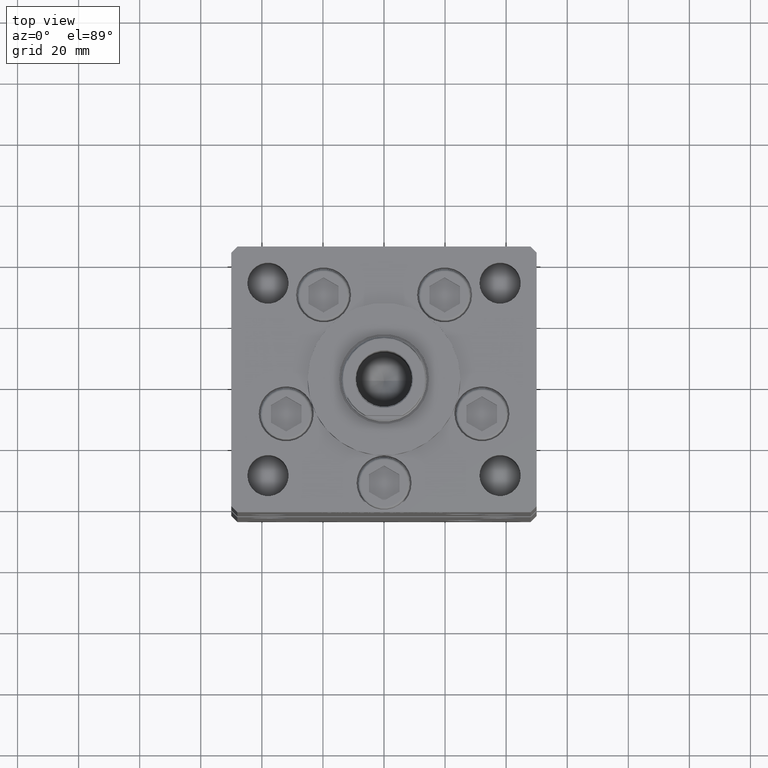
[diagram: clean part render]
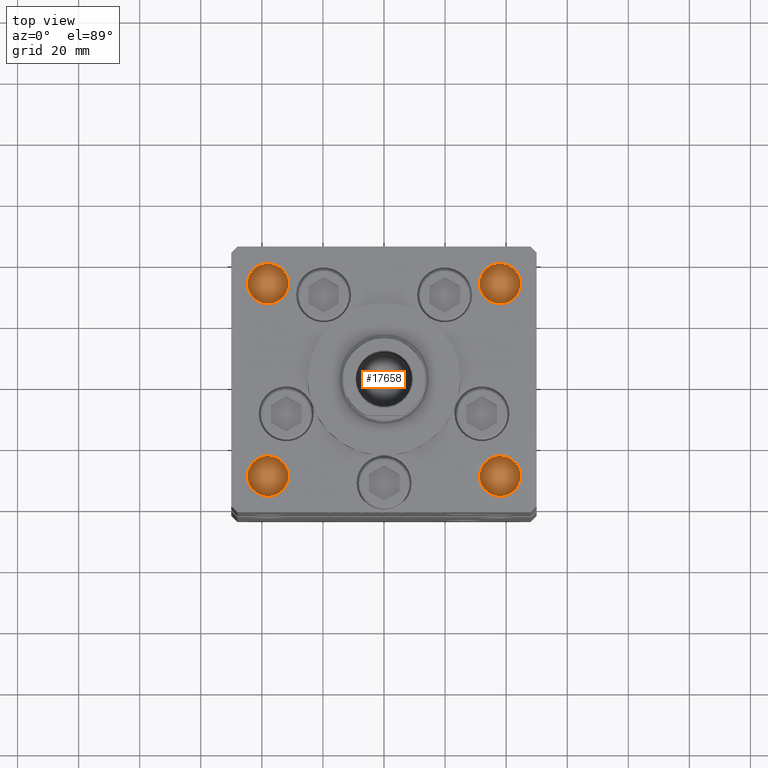
[diagram: same view with one face highlighted and labeled with its STEP entity id]
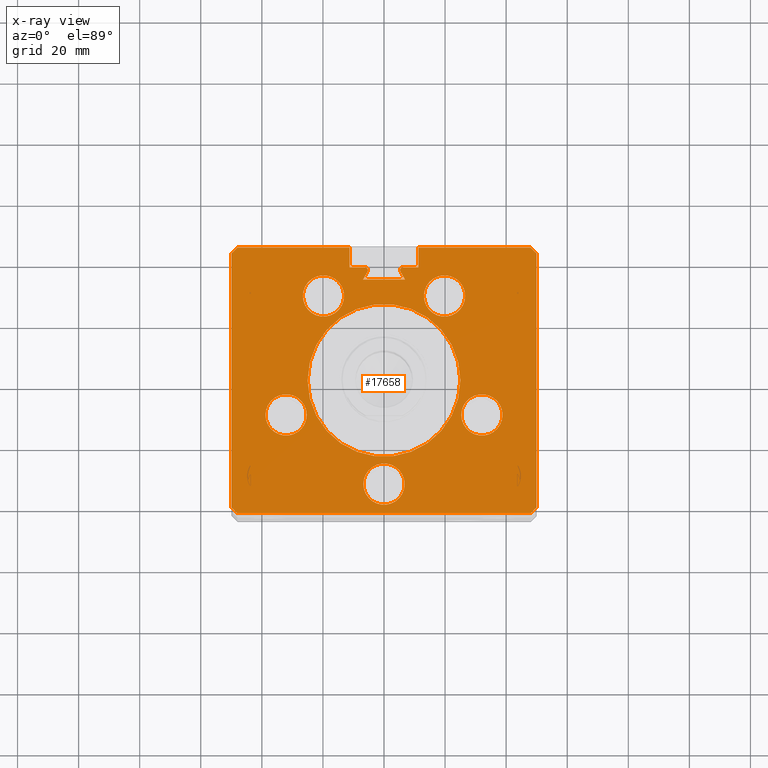
[diagram: x-ray of the same camera — body ghosted, the highlighted face saturated]
A machine part, top view. The second image highlights one B-rep face of the part: STEP entity #17658.
The next image is the same camera in x-ray: the body ghosted, the highlighted face saturated — about 0% of this face is hidden behind the body in this view.
In plain terms, the highlighted planar face has unit normal (0, 0, -1).
Its self-contained STEP definition (entity closure, byte-faithful):
#13 = EDGE_CURVE ( 'NONE', #19755, #31861, #48676, .T. ) ;
#379 = EDGE_CURVE ( 'NONE', #48150, #17467, #24813, .T. ) ;
#549 = VERTEX_POINT ( 'NONE', #16878 ) ;
#564 = CARTESIAN_POINT ( 'NONE',  ( 6.876153656360465050, 32.99999999999986500, 148.5000000000000000 ) ) ;
#1143 = CARTESIAN_POINT ( 'NONE',  ( 0.000000000000000000, 0.000000000000000000, 148.5000000000000000 ) ) ;
#1181 = FACE_BOUND ( 'NONE', #9971, .T. ) ;
#1240 = AXIS2_PLACEMENT_3D ( 'NONE', #34955, #18291, #34688 ) ;
#1286 = AXIS2_PLACEMENT_3D ( 'NONE', #5603, #26543, #21978 ) ;
#1352 = CARTESIAN_POINT ( 'NONE',  ( 6.750000000000000888, -34.00000000000000000, 148.5000000000000000 ) ) ;
#1665 = LINE ( 'NONE', #18043, #3215 ) ;
#1792 = EDGE_CURVE ( 'NONE', #20033, #45003, #36056, .T. ) ;
#2208 = CARTESIAN_POINT ( 'NONE',  ( 19.82068048781374259, 27.62500000000000000, 148.5000000000000000 ) ) ;
#2551 = DIRECTION ( 'NONE',  ( 0.7071067811865487940, -0.7071067811865463515, 0.000000000000000000 ) ) ;
#2599 = CARTESIAN_POINT ( 'NONE',  ( 26.57068048781373903, 27.62500000000000000, 148.5000000000000000 ) ) ;
#2622 = CARTESIAN_POINT ( 'NONE',  ( 38.80550741379015278, -11.33333333333334103, 148.5000000000000000 ) ) ;
#2671 = CARTESIAN_POINT ( 'NONE',  ( 49.99999999999998579, -41.49999999999999289, 148.5000000000000000 ) ) ;
#2698 = VECTOR ( 'NONE', #34279, 1000.000000000000000 ) ;
#3131 = ORIENTED_EDGE ( 'NONE', *, *, #23183, .F. ) ;
#3155 = CIRCLE ( 'NONE', #17755, 6.749999999999999112 ) ;
#3205 = CARTESIAN_POINT ( 'NONE',  ( 25.00000000000000000, 3.061616997868383043E-15, 148.5000000000000000 ) ) ;
#3207 = DIRECTION ( 'NONE',  ( 0.000000000000000000, 1.000000000000000000, 0.000000000000000000 ) ) ;
#3215 = VECTOR ( 'NONE', #30926, 1000.000000000000000 ) ;
#3225 = CARTESIAN_POINT ( 'NONE',  ( -11.24999999999999645, 43.50000000000000000, 148.5000000000000000 ) ) ;
#3355 = AXIS2_PLACEMENT_3D ( 'NONE', #19582, #28975, #23870 ) ;
#3464 = VERTEX_POINT ( 'NONE', #19153 ) ;
#3538 = CIRCLE ( 'NONE', #14700, 6.749999999999999112 ) ;
#3786 = CARTESIAN_POINT ( 'NONE',  ( -47.99999999999998579, -43.50000000000000000, 148.5000000000000000 ) ) ;
#4006 = LINE ( 'NONE', #3225, #37190 ) ;
#4019 = ORIENTED_EDGE ( 'NONE', *, *, #45703, .F. ) ;
#4053 = DIRECTION ( 'NONE',  ( 1.000000000000000000, 0.000000000000000000, 0.000000000000000000 ) ) ;
#4066 = AXIS2_PLACEMENT_3D ( 'NONE', #53190, #4545, #49695 ) ;
#4545 = DIRECTION ( 'NONE',  ( 0.000000000000000000, 0.000000000000000000, 1.000000000000000000 ) ) ;
#4675 = FACE_BOUND ( 'NONE', #16872, .T. ) ;
#4710 = ORIENTED_EDGE ( 'NONE', *, *, #17100, .F. ) ;
#4788 = VECTOR ( 'NONE', #52429, 1000.000000000000000 ) ;
#5015 = CIRCLE ( 'NONE', #41054, 6.749999999999999112 ) ;
#5182 = CARTESIAN_POINT ( 'NONE',  ( 19.82068048781374259, 27.62500000000000000, 148.5000000000000000 ) ) ;
#5419 = ORIENTED_EDGE ( 'NONE', *, *, #1792, .T. ) ;
#5422 = CARTESIAN_POINT ( 'NONE',  ( -49.99999999999998579, -41.49999999999999289, 148.5000000000000000 ) ) ;
#5567 = VERTEX_POINT ( 'NONE', #40202 ) ;
#5603 = CARTESIAN_POINT ( 'NONE',  ( 0.000000000000000000, 0.000000000000000000, 148.5000000000000000 ) ) ;
#6460 = VERTEX_POINT ( 'NONE', #52588 ) ;
#6565 = VERTEX_POINT ( 'NONE', #45848 ) ;
#6754 = EDGE_CURVE ( 'NONE', #3464, #47217, #22954, .T. ) ;
#6936 = CARTESIAN_POINT ( 'NONE',  ( -25.00000000000000000, 0.000000000000000000, 148.5000000000000000 ) ) ;
#6972 = EDGE_CURVE ( 'NONE', #17467, #48150, #3538, .T. ) ;
#7032 = CARTESIAN_POINT ( 'NONE',  ( -19.82068048781374259, 27.62499999999999645, 148.5000000000000000 ) ) ;
#7144 = VERTEX_POINT ( 'NONE', #2622 ) ;
#7341 = CARTESIAN_POINT ( 'NONE',  ( 11.24999999999999645, 0.000000000000000000, 148.5000000000000000 ) ) ;
#7354 = EDGE_CURVE ( 'NONE', #40556, #19235, #9295, .T. ) ;
#7789 = CARTESIAN_POINT ( 'NONE',  ( -19.44653440471351757, 11.22746187336663404, 148.5000000000000000 ) ) ;
#7859 = DIRECTION ( 'NONE',  ( 0.000000000000000000, 0.000000000000000000, 1.000000000000000000 ) ) ;
#7958 = DIRECTION ( 'NONE',  ( 0.000000000000000000, 0.000000000000000000, -1.000000000000000000 ) ) ;
#8057 = VERTEX_POINT ( 'NONE', #29194 ) ;
#8100 = DIRECTION ( 'NONE',  ( 1.000000000000000000, 0.000000000000000000, 0.000000000000000000 ) ) ;
#8191 = CIRCLE ( 'NONE', #38238, 0.9333333333339999260 ) ;
#8730 = EDGE_LOOP ( 'NONE', ( #9802, #27153 ) ) ;
#8996 = CARTESIAN_POINT ( 'NONE',  ( -6.749999999999997335, -34.00000000000000000, 148.5000000000000000 ) ) ;
#9295 = LINE ( 'NONE', #26220, #2698 ) ;
#9400 = ORIENTED_EDGE ( 'NONE', *, *, #35258, .F. ) ;
#9480 = DIRECTION ( 'NONE',  ( 0.000000000000000000, 0.000000000000000000, 1.000000000000000000 ) ) ;
#9718 = DIRECTION ( 'NONE',  ( 1.000000000000000000, 0.000000000000000000, 0.000000000000000000 ) ) ;
#9758 = FACE_BOUND ( 'NONE', #50139, .T. ) ;
#9802 = ORIENTED_EDGE ( 'NONE', *, *, #6972, .F. ) ;
#9971 = EDGE_LOOP ( 'NONE', ( #12346, #50369 ) ) ;
#10049 = VERTEX_POINT ( 'NONE', #41885 ) ;
#10257 = DIRECTION ( 'NONE',  ( 1.000000000000000000, 0.000000000000000000, 0.000000000000000000 ) ) ;
#10796 = CARTESIAN_POINT ( 'NONE',  ( -11.24999999999999645, 43.50000000000000000, 148.5000000000000000 ) ) ;
#10985 = LINE ( 'NONE', #44045, #36574 ) ;
#11181 = CARTESIAN_POINT ( 'NONE',  ( 49.99999999999998579, -41.49999999999999289, 148.5000000000000000 ) ) ;
#11465 = ORIENTED_EDGE ( 'NONE', *, *, #32500, .T. ) ;
#11626 = VERTEX_POINT ( 'NONE', #47401 ) ;
#11658 = VECTOR ( 'NONE', #27849, 1000.000000000000114 ) ;
#12208 = ORIENTED_EDGE ( 'NONE', *, *, #33598, .F. ) ;
#12300 = AXIS2_PLACEMENT_3D ( 'NONE', #50625, #34217, #46334 ) ;
#12346 = ORIENTED_EDGE ( 'NONE', *, *, #52234, .F. ) ;
#12399 = CARTESIAN_POINT ( 'NONE',  ( 2.081899558550500280E-15, -34.00000000000000000, 148.5000000000000000 ) ) ;
#12763 = CARTESIAN_POINT ( 'NONE',  ( -5.249999999999995559, 36.06666666666599497, 148.5000000000000000 ) ) ;
#13226 = CARTESIAN_POINT ( 'NONE',  ( -49.99999999999998579, -41.49999999999999289, 148.5000000000000000 ) ) ;
#13257 = AXIS2_PLACEMENT_3D ( 'NONE', #49167, #32761, #31973 ) ;
#13873 = EDGE_CURVE ( 'NONE', #34713, #6565, #23648, .T. ) ;
#14093 = ORIENTED_EDGE ( 'NONE', *, *, #36310, .F. ) ;
#14104 = CIRCLE ( 'NONE', #13257, 0.9333333333339999260 ) ;
#14344 = VERTEX_POINT ( 'NONE', #2599 ) ;
#14700 = AXIS2_PLACEMENT_3D ( 'NONE', #7032, #30961, #39817 ) ;
#15207 = ORIENTED_EDGE ( 'NONE', *, *, #24961, .F. ) ;
#15700 = VERTEX_POINT ( 'NONE', #20035 ) ;
#15891 = DIRECTION ( 'NONE',  ( 0.4999999999999987788, -0.8660254037844392627, 0.000000000000000000 ) ) ;
#15971 = VECTOR ( 'NONE', #21797, 1000.000000000000114 ) ;
#16129 = CARTESIAN_POINT ( 'NONE',  ( 5.375042956467946276, 35.59999999999899245, 148.5000000000000000 ) ) ;
#16383 = LINE ( 'NONE', #32775, #4788 ) ;
#16489 = VECTOR ( 'NONE', #48658, 1000.000000000000114 ) ;
#16840 = CARTESIAN_POINT ( 'NONE',  ( -11.24999999999999645, 37.00000000000000000, 148.5000000000000000 ) ) ;
#16872 = EDGE_LOOP ( 'NONE', ( #49000, #34590 ) ) ;
#16878 = CARTESIAN_POINT ( 'NONE',  ( 25.30550741379015278, -11.33333333333334103, 148.5000000000000000 ) ) ;
#17034 = FACE_BOUND ( 'NONE', #24167, .T. ) ;
#17100 = EDGE_CURVE ( 'NONE', #6460, #3464, #40083, .T. ) ;
#17467 = VERTEX_POINT ( 'NONE', #40671 ) ;
#17597 = ORIENTED_EDGE ( 'NONE', *, *, #45101, .F. ) ;
#17658 = ADVANCED_FACE ( 'NONE', ( #1181, #17034, #4675, #46595, #49562, #21324, #9758 ), #26158, .F. ) ;
#17755 = AXIS2_PLACEMENT_3D ( 'NONE', #47462, #40177, #51752 ) ;
#18043 = CARTESIAN_POINT ( 'NONE',  ( 0.000000000000000000, 32.99999999999986500, 148.5000000000000000 ) ) ;
#18291 = DIRECTION ( 'NONE',  ( 0.000000000000000000, 0.000000000000000000, 1.000000000000000000 ) ) ;
#18306 = ORIENTED_EDGE ( 'NONE', *, *, #25142, .T. ) ;
#18611 = CARTESIAN_POINT ( 'NONE',  ( -38.80550741379015278, -11.33333333333334458, 148.5000000000000000 ) ) ;
#18689 = CARTESIAN_POINT ( 'NONE',  ( -6.876153656360465050, 32.99999999999986500, 148.5000000000000000 ) ) ;
#19153 = CARTESIAN_POINT ( 'NONE',  ( 48.00000000000000711, 43.50000000000000000, 148.5000000000000000 ) ) ;
#19235 = VERTEX_POINT ( 'NONE', #16840 ) ;
#19434 = AXIS2_PLACEMENT_3D ( 'NONE', #1143, #26119, #9718 ) ;
#19582 = CARTESIAN_POINT ( 'NONE',  ( -19.82068048781374259, 27.62499999999999645, 148.5000000000000000 ) ) ;
#19603 = AXIS2_PLACEMENT_3D ( 'NONE', #42265, #9480, #29908 ) ;
#19627 = ORIENTED_EDGE ( 'NONE', *, *, #47772, .T. ) ;
#19698 = CARTESIAN_POINT ( 'NONE',  ( -32.05550741379015278, -11.33333333333334458, 148.5000000000000000 ) ) ;
#19755 = VERTEX_POINT ( 'NONE', #47267 ) ;
#20033 = VERTEX_POINT ( 'NONE', #16129 ) ;
#20035 = CARTESIAN_POINT ( 'NONE',  ( -11.24999999999999645, 43.50000000000000000, 148.5000000000000000 ) ) ;
#20415 = ORIENTED_EDGE ( 'NONE', *, *, #6754, .F. ) ;
#20557 = VECTOR ( 'NONE', #15891, 1000.000000000000114 ) ;
#20812 = ORIENTED_EDGE ( 'NONE', *, *, #22086, .F. ) ;
#21235 = VECTOR ( 'NONE', #23948, 1000.000000000000000 ) ;
#21309 = VECTOR ( 'NONE', #33737, 1000.000000000000000 ) ;
#21324 = FACE_OUTER_BOUND ( 'NONE', #36937, .T. ) ;
#21340 = VERTEX_POINT ( 'NONE', #40467 ) ;
#21797 = DIRECTION ( 'NONE',  ( 0.7071067811865474617, -0.7071067811865474617, 0.000000000000000000 ) ) ;
#21978 = DIRECTION ( 'NONE',  ( 1.000000000000000000, 0.000000000000000000, 0.000000000000000000 ) ) ;
#22086 = EDGE_CURVE ( 'NONE', #39732, #37426, #32176, .T. ) ;
#22300 = CARTESIAN_POINT ( 'NONE',  ( 50.00000000000001421, 41.49999999999999289, 148.5000000000000000 ) ) ;
#22811 = VECTOR ( 'NONE', #40130, 1000.000000000000000 ) ;
#22954 = LINE ( 'NONE', #43391, #26746 ) ;
#23151 = DIRECTION ( 'NONE',  ( 1.000000000000000000, 0.000000000000000000, 0.000000000000000000 ) ) ;
#23183 = EDGE_CURVE ( 'NONE', #44380, #48879, #51107, .T. ) ;
#23372 = ORIENTED_EDGE ( 'NONE', *, *, #24728, .F. ) ;
#23472 = ORIENTED_EDGE ( 'NONE', *, *, #7354, .T. ) ;
#23648 = LINE ( 'NONE', #7789, #16489 ) ;
#23870 = DIRECTION ( 'NONE',  ( 1.000000000000000000, 0.000000000000000000, 0.000000000000000000 ) ) ;
#23948 = DIRECTION ( 'NONE',  ( 3.344045254895050973E-16, -1.000000000000000000, 0.000000000000000000 ) ) ;
#24167 = EDGE_LOOP ( 'NONE', ( #9400, #3131 ) ) ;
#24511 = DIRECTION ( 'NONE',  ( 1.000000000000000000, 0.000000000000000000, 0.000000000000000000 ) ) ;
#24573 = ORIENTED_EDGE ( 'NONE', *, *, #24679, .T. ) ;
#24679 = EDGE_CURVE ( 'NONE', #6460, #8057, #27768, .T. ) ;
#24728 = EDGE_CURVE ( 'NONE', #5567, #14344, #52863, .T. ) ;
#24785 = DIRECTION ( 'NONE',  ( 1.000000000000000000, 0.000000000000000000, 0.000000000000000000 ) ) ;
#24813 = CIRCLE ( 'NONE', #3355, 6.749999999999999112 ) ;
#24865 = LINE ( 'NONE', #37231, #21309 ) ;
#24961 = EDGE_CURVE ( 'NONE', #40556, #50923, #8191, .T. ) ;
#25142 = EDGE_CURVE ( 'NONE', #19235, #15700, #10985, .T. ) ;
#25533 = CARTESIAN_POINT ( 'NONE',  ( -6.183333333333996151, 36.06666666666599497, 148.5000000000000000 ) ) ;
#26119 = DIRECTION ( 'NONE',  ( -0.000000000000000000, 0.000000000000000000, 1.000000000000000000 ) ) ;
#26158 = PLANE ( 'NONE',  #12300 ) ;
#26220 = CARTESIAN_POINT ( 'NONE',  ( 0.000000000000000000, 37.00000000000000000, 148.5000000000000000 ) ) ;
#26244 = AXIS2_PLACEMENT_3D ( 'NONE', #5182, #37688, #24785 ) ;
#26543 = DIRECTION ( 'NONE',  ( -0.000000000000000000, 0.000000000000000000, 1.000000000000000000 ) ) ;
#26746 = VECTOR ( 'NONE', #2551, 1000.000000000000000 ) ;
#26876 = EDGE_CURVE ( 'NONE', #7144, #549, #3155, .T. ) ;
#26911 = AXIS2_PLACEMENT_3D ( 'NONE', #40223, #7958, #27869 ) ;
#27065 = EDGE_LOOP ( 'NONE', ( #41327, #23372 ) ) ;
#27153 = ORIENTED_EDGE ( 'NONE', *, *, #379, .F. ) ;
#27206 = CARTESIAN_POINT ( 'NONE',  ( 19.44653440471351757, 11.22746187336663404, 148.5000000000000000 ) ) ;
#27229 = CIRCLE ( 'NONE', #4066, 6.749999999999999112 ) ;
#27514 = ORIENTED_EDGE ( 'NONE', *, *, #30856, .F. ) ;
#27708 = DIRECTION ( 'NONE',  ( 0.000000000000000000, 0.000000000000000000, 1.000000000000000000 ) ) ;
#27768 = LINE ( 'NONE', #7341, #22811 ) ;
#27849 = DIRECTION ( 'NONE',  ( -0.7071067811865474617, -0.7071067811865474617, 0.000000000000000000 ) ) ;
#27869 = DIRECTION ( 'NONE',  ( 1.000000000000000000, 0.000000000000000000, 0.000000000000000000 ) ) ;
#27988 = CIRCLE ( 'NONE', #39255, 6.749999999999999112 ) ;
#28729 = EDGE_CURVE ( 'NONE', #549, #7144, #27229, .T. ) ;
#28975 = DIRECTION ( 'NONE',  ( 0.000000000000000000, 0.000000000000000000, 1.000000000000000000 ) ) ;
#29015 = VERTEX_POINT ( 'NONE', #33224 ) ;
#29194 = CARTESIAN_POINT ( 'NONE',  ( 11.24999999999999645, 37.00000000000000000, 148.5000000000000000 ) ) ;
#29423 = VERTEX_POINT ( 'NONE', #18611 ) ;
#29908 = DIRECTION ( 'NONE',  ( 1.000000000000000000, 0.000000000000000000, 0.000000000000000000 ) ) ;
#30338 = EDGE_CURVE ( 'NONE', #48513, #19755, #41962, .T. ) ;
#30631 = DIRECTION ( 'NONE',  ( -3.344045254895050973E-16, -1.000000000000000000, 0.000000000000000000 ) ) ;
#30655 = ORIENTED_EDGE ( 'NONE', *, *, #30338, .T. ) ;
#30856 = EDGE_CURVE ( 'NONE', #37426, #39732, #37467, .T. ) ;
#30926 = DIRECTION ( 'NONE',  ( -1.000000000000000000, 0.000000000000000000, 0.000000000000000000 ) ) ;
#30961 = DIRECTION ( 'NONE',  ( 0.000000000000000000, 0.000000000000000000, 1.000000000000000000 ) ) ;
#31861 = VERTEX_POINT ( 'NONE', #53099 ) ;
#31973 = DIRECTION ( 'NONE',  ( 1.000000000000000000, 0.000000000000000000, 0.000000000000000000 ) ) ;
#32056 = CIRCLE ( 'NONE', #26911, 0.9333333333339999260 ) ;
#32057 = VERTEX_POINT ( 'NONE', #2671 ) ;
#32176 = CIRCLE ( 'NONE', #1286, 25.00000000000000000 ) ;
#32500 = EDGE_CURVE ( 'NONE', #8057, #11626, #24865, .T. ) ;
#32761 = DIRECTION ( 'NONE',  ( 0.000000000000000000, 0.000000000000000000, -1.000000000000000000 ) ) ;
#32775 = CARTESIAN_POINT ( 'NONE',  ( -48.00000000000000711, 43.50000000000000000, 148.5000000000000000 ) ) ;
#33224 = CARTESIAN_POINT ( 'NONE',  ( -48.00000000000000711, 43.50000000000000000, 148.5000000000000000 ) ) ;
#33357 = EDGE_CURVE ( 'NONE', #29015, #15700, #4006, .T. ) ;
#33598 = EDGE_CURVE ( 'NONE', #50923, #6565, #32056, .T. ) ;
#33737 = DIRECTION ( 'NONE',  ( -1.000000000000000000, 0.000000000000000000, 0.000000000000000000 ) ) ;
#34217 = DIRECTION ( 'NONE',  ( 0.000000000000000000, 0.000000000000000000, -1.000000000000000000 ) ) ;
#34279 = DIRECTION ( 'NONE',  ( -1.000000000000000000, 0.000000000000000000, 0.000000000000000000 ) ) ;
#34590 = ORIENTED_EDGE ( 'NONE', *, *, #28729, .F. ) ;
#34688 = DIRECTION ( 'NONE',  ( 1.000000000000000000, 0.000000000000000000, 0.000000000000000000 ) ) ;
#34713 = VERTEX_POINT ( 'NONE', #18689 ) ;
#34955 = CARTESIAN_POINT ( 'NONE',  ( 2.081899558550500280E-15, -34.00000000000000000, 148.5000000000000000 ) ) ;
#35258 = EDGE_CURVE ( 'NONE', #48879, #44380, #50988, .T. ) ;
#35466 = VECTOR ( 'NONE', #23151, 1000.000000000000000 ) ;
#35518 = LINE ( 'NONE', #40086, #21235 ) ;
#35568 = ORIENTED_EDGE ( 'NONE', *, *, #13, .T. ) ;
#35626 = AXIS2_PLACEMENT_3D ( 'NONE', #12399, #44938, #8100 ) ;
#36056 = LINE ( 'NONE', #27206, #20557 ) ;
#36310 = EDGE_CURVE ( 'NONE', #20033, #11626, #14104, .T. ) ;
#36574 = VECTOR ( 'NONE', #3207, 1000.000000000000000 ) ;
#36937 = EDGE_LOOP ( 'NONE', ( #23472, #18306, #50496, #45821, #48796, #30655, #35568, #17597, #4019, #20415, #4710, #24573, #11465, #14093, #5419, #19627, #41184, #12208, #15207 ) ) ;
#37190 = VECTOR ( 'NONE', #48630, 1000.000000000000000 ) ;
#37231 = CARTESIAN_POINT ( 'NONE',  ( 0.000000000000000000, 37.00000000000000000, 148.5000000000000000 ) ) ;
#37426 = VERTEX_POINT ( 'NONE', #6936 ) ;
#37467 = CIRCLE ( 'NONE', #19434, 25.00000000000000000 ) ;
#37688 = DIRECTION ( 'NONE',  ( 0.000000000000000000, 0.000000000000000000, 1.000000000000000000 ) ) ;
#38238 = AXIS2_PLACEMENT_3D ( 'NONE', #25533, #49997, #41113 ) ;
#38660 = EDGE_CURVE ( 'NONE', #29015, #21340, #16383, .T. ) ;
#39144 = VECTOR ( 'NONE', #30631, 1000.000000000000000 ) ;
#39255 = AXIS2_PLACEMENT_3D ( 'NONE', #2208, #27708, #10257 ) ;
#39732 = VERTEX_POINT ( 'NONE', #3205 ) ;
#39817 = DIRECTION ( 'NONE',  ( 1.000000000000000000, 0.000000000000000000, 0.000000000000000000 ) ) ;
#40010 = CARTESIAN_POINT ( 'NONE',  ( -6.183333333333996151, 37.00000000000000000, 148.5000000000000000 ) ) ;
#40083 = LINE ( 'NONE', #10796, #35466 ) ;
#40086 = CARTESIAN_POINT ( 'NONE',  ( -50.00000000000001421, 41.49999999999999289, 148.5000000000000000 ) ) ;
#40130 = DIRECTION ( 'NONE',  ( -0.000000000000000000, -1.000000000000000000, 0.000000000000000000 ) ) ;
#40177 = DIRECTION ( 'NONE',  ( 0.000000000000000000, 0.000000000000000000, 1.000000000000000000 ) ) ;
#40202 = CARTESIAN_POINT ( 'NONE',  ( 13.07068048781374081, 27.62500000000000000, 148.5000000000000000 ) ) ;
#40223 = CARTESIAN_POINT ( 'NONE',  ( -6.183333333333996151, 36.06666666666599497, 148.5000000000000000 ) ) ;
#40467 = CARTESIAN_POINT ( 'NONE',  ( -50.00000000000001421, 41.49999999999999289, 148.5000000000000000 ) ) ;
#40556 = VERTEX_POINT ( 'NONE', #40010 ) ;
#40671 = CARTESIAN_POINT ( 'NONE',  ( -13.07068048781374259, 27.62499999999999645, 148.5000000000000000 ) ) ;
#41054 = AXIS2_PLACEMENT_3D ( 'NONE', #19698, #7859, #24511 ) ;
#41113 = DIRECTION ( 'NONE',  ( 1.000000000000000000, 0.000000000000000000, 0.000000000000000000 ) ) ;
#41184 = ORIENTED_EDGE ( 'NONE', *, *, #13873, .T. ) ;
#41327 = ORIENTED_EDGE ( 'NONE', *, *, #44858, .F. ) ;
#41885 = CARTESIAN_POINT ( 'NONE',  ( -25.30550741379015278, -11.33333333333334458, 148.5000000000000000 ) ) ;
#41962 = LINE ( 'NONE', #5422, #15971 ) ;
#42265 = CARTESIAN_POINT ( 'NONE',  ( -32.05550741379015278, -11.33333333333334458, 148.5000000000000000 ) ) ;
#42802 = CIRCLE ( 'NONE', #19603, 6.749999999999999112 ) ;
#43391 = CARTESIAN_POINT ( 'NONE',  ( 48.00000000000000711, 43.50000000000000000, 148.5000000000000000 ) ) ;
#43885 = EDGE_CURVE ( 'NONE', #21340, #48513, #35518, .T. ) ;
#44045 = CARTESIAN_POINT ( 'NONE',  ( -11.24999999999999645, 0.000000000000000000, 148.5000000000000000 ) ) ;
#44380 = VERTEX_POINT ( 'NONE', #8996 ) ;
#44858 = EDGE_CURVE ( 'NONE', #14344, #5567, #27988, .T. ) ;
#44938 = DIRECTION ( 'NONE',  ( 0.000000000000000000, 0.000000000000000000, 1.000000000000000000 ) ) ;
#45003 = VERTEX_POINT ( 'NONE', #564 ) ;
#45101 = EDGE_CURVE ( 'NONE', #32057, #31861, #47297, .T. ) ;
#45703 = EDGE_CURVE ( 'NONE', #47217, #32057, #46257, .T. ) ;
#45821 = ORIENTED_EDGE ( 'NONE', *, *, #38660, .T. ) ;
#45848 = CARTESIAN_POINT ( 'NONE',  ( -5.375042956467946276, 35.59999999999899245, 148.5000000000000000 ) ) ;
#46257 = LINE ( 'NONE', #22300, #39144 ) ;
#46334 = DIRECTION ( 'NONE',  ( -1.000000000000000000, 0.000000000000000000, -0.000000000000000000 ) ) ;
#46595 = FACE_BOUND ( 'NONE', #27065, .T. ) ;
#47217 = VERTEX_POINT ( 'NONE', #47725 ) ;
#47267 = CARTESIAN_POINT ( 'NONE',  ( -47.99999999999998579, -43.50000000000000000, 148.5000000000000000 ) ) ;
#47297 = LINE ( 'NONE', #11181, #11658 ) ;
#47401 = CARTESIAN_POINT ( 'NONE',  ( 6.183333333333996151, 37.00000000000000000, 148.5000000000000000 ) ) ;
#47462 = CARTESIAN_POINT ( 'NONE',  ( 32.05550741379015278, -11.33333333333334103, 148.5000000000000000 ) ) ;
#47725 = CARTESIAN_POINT ( 'NONE',  ( 50.00000000000001421, 41.49999999999999289, 148.5000000000000000 ) ) ;
#47772 = EDGE_CURVE ( 'NONE', #45003, #34713, #1665, .T. ) ;
#48150 = VERTEX_POINT ( 'NONE', #52823 ) ;
#48513 = VERTEX_POINT ( 'NONE', #13226 ) ;
#48630 = DIRECTION ( 'NONE',  ( 1.000000000000000000, 0.000000000000000000, 0.000000000000000000 ) ) ;
#48658 = DIRECTION ( 'NONE',  ( 0.4999999999999987788, 0.8660254037844392627, 0.000000000000000000 ) ) ;
#48676 = LINE ( 'NONE', #3786, #48846 ) ;
#48796 = ORIENTED_EDGE ( 'NONE', *, *, #43885, .T. ) ;
#48846 = VECTOR ( 'NONE', #4053, 1000.000000000000000 ) ;
#48879 = VERTEX_POINT ( 'NONE', #1352 ) ;
#49000 = ORIENTED_EDGE ( 'NONE', *, *, #26876, .F. ) ;
#49167 = CARTESIAN_POINT ( 'NONE',  ( 6.183333333333996151, 36.06666666666599497, 148.5000000000000000 ) ) ;
#49562 = FACE_BOUND ( 'NONE', #8730, .T. ) ;
#49695 = DIRECTION ( 'NONE',  ( 1.000000000000000000, 0.000000000000000000, 0.000000000000000000 ) ) ;
#49997 = DIRECTION ( 'NONE',  ( 0.000000000000000000, 0.000000000000000000, -1.000000000000000000 ) ) ;
#50139 = EDGE_LOOP ( 'NONE', ( #27514, #20812 ) ) ;
#50369 = ORIENTED_EDGE ( 'NONE', *, *, #51232, .F. ) ;
#50496 = ORIENTED_EDGE ( 'NONE', *, *, #33357, .F. ) ;
#50625 = CARTESIAN_POINT ( 'NONE',  ( 0.000000000000000000, 0.000000000000000000, 148.5000000000000000 ) ) ;
#50923 = VERTEX_POINT ( 'NONE', #12763 ) ;
#50988 = CIRCLE ( 'NONE', #1240, 6.749999999999999112 ) ;
#51107 = CIRCLE ( 'NONE', #35626, 6.749999999999999112 ) ;
#51232 = EDGE_CURVE ( 'NONE', #29423, #10049, #5015, .T. ) ;
#51752 = DIRECTION ( 'NONE',  ( 1.000000000000000000, 0.000000000000000000, 0.000000000000000000 ) ) ;
#52234 = EDGE_CURVE ( 'NONE', #10049, #29423, #42802, .T. ) ;
#52429 = DIRECTION ( 'NONE',  ( -0.7071067811865487940, -0.7071067811865463515, 0.000000000000000000 ) ) ;
#52588 = CARTESIAN_POINT ( 'NONE',  ( 11.24999999999998934, 43.50000000000000000, 148.5000000000000000 ) ) ;
#52823 = CARTESIAN_POINT ( 'NONE',  ( -26.57068048781373903, 27.62499999999999645, 148.5000000000000000 ) ) ;
#52863 = CIRCLE ( 'NONE', #26244, 6.749999999999999112 ) ;
#53099 = CARTESIAN_POINT ( 'NONE',  ( 47.99999999999998579, -43.50000000000000000, 148.5000000000000000 ) ) ;
#53190 = CARTESIAN_POINT ( 'NONE',  ( 32.05550741379015278, -11.33333333333334103, 148.5000000000000000 ) ) ;